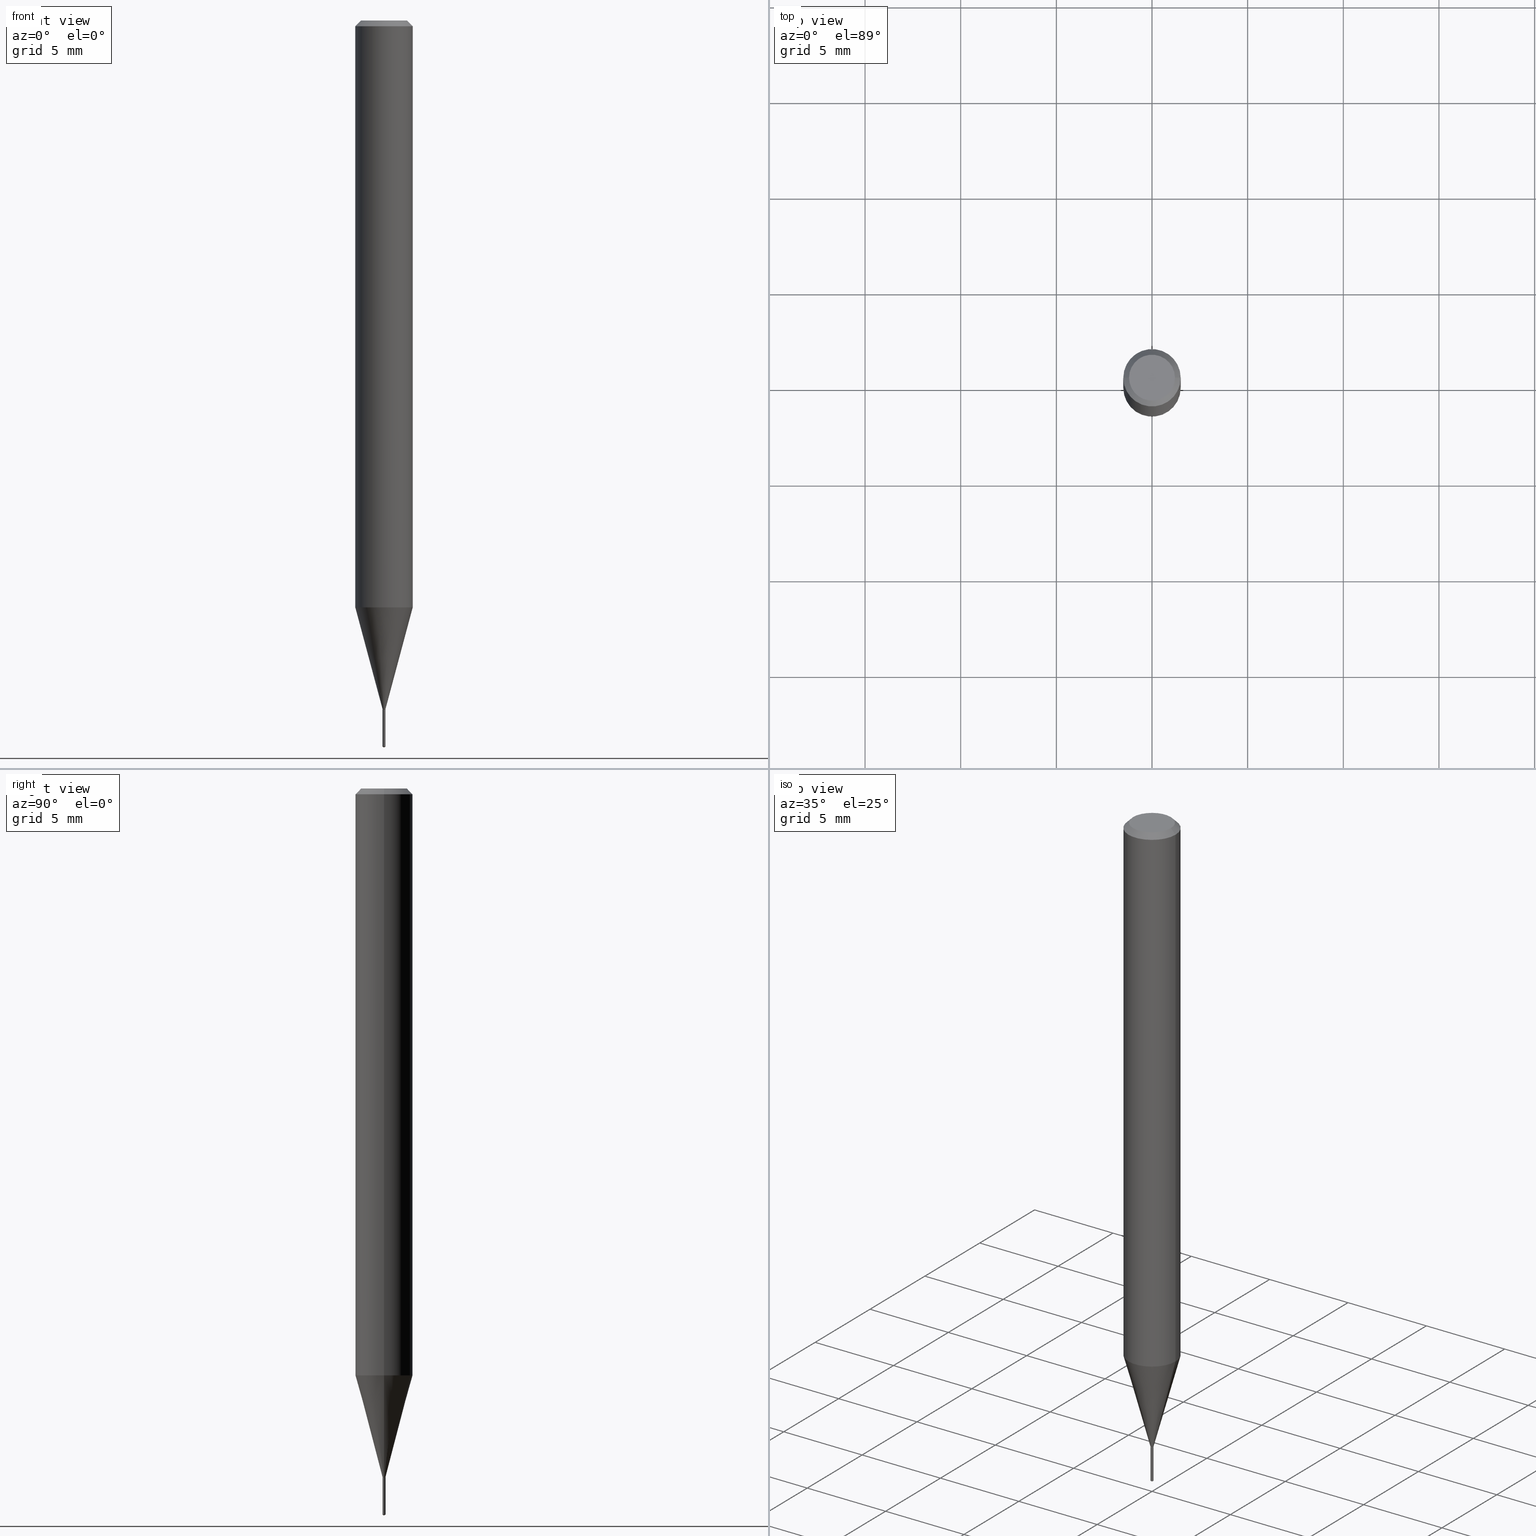
[diagram: canonical four-view strip — front | top / right | iso, engineering-drawing reading convention]
A machine part, canonical four-view strip (front | top / right | iso — engineering-drawing reading convention). The complete STEP part file that produces these views, byte-faithful:
ISO-10303-21;
HEADER;
FILE_DESCRIPTION (( 'STEP AP203' ),
    '1' );
FILE_NAME ('07735.STEP',
    '2024-04-24T01:56:40',
    ( '' ),
    ( '' ),
    'SwSTEP 2.0',
    'SolidWorks 2023',
    '' );
FILE_SCHEMA (( 'CONFIG_CONTROL_DESIGN' ));
ENDSEC;

DATA;
#1 = VERTEX_POINT ( 'NONE', #402 ) ;
#2 = PERSON_AND_ORGANIZATION ( #83, #242 ) ;
#3 = DIRECTION ( 'NONE',  ( -2.445418252275281466E-29, 3.491553734919407825E-15, 1.000000000000000000 ) ) ;
#4 = ORIENTED_EDGE ( 'NONE', *, *, #228, .T. ) ;
#5 =( GEOMETRIC_REPRESENTATION_CONTEXT ( 3 ) GLOBAL_UNCERTAINTY_ASSIGNED_CONTEXT ( ( #267 ) ) GLOBAL_UNIT_ASSIGNED_CONTEXT ( ( #96, #398, #251 ) ) REPRESENTATION_CONTEXT ( 'NONE', 'WORKASPACE' ) );
#6 = CARTESIAN_POINT ( 'NONE',  ( -0.002650000000000000445, -4.929996267178631795E-15, -1.417399999999999993 ) ) ;
#7 = CLOSED_SHELL ( 'NONE', ( #122, #285, #74, #238, #403 ) ) ;
#8 = ORIENTED_EDGE ( 'NONE', *, *, #40, .F. ) ;
#9 = PLANE ( 'NONE',  #342 ) ;
#10 = VERTEX_POINT ( 'NONE', #406 ) ;
#11 = EDGE_CURVE ( 'NONE', #1, #380, #235, .T. ) ;
#12 = FACE_OUTER_BOUND ( 'NONE', #137, .T. ) ;
#13 = AXIS2_PLACEMENT_3D ( 'NONE', #444, #54, #204 ) ;
#14 = DIRECTION ( 'NONE',  ( -2.445468806185136597E-29, 3.491481338843145583E-15, 1.000000000000000000 ) ) ;
#15 = LOCAL_TIME ( 21, 56, 40.00000000000000000, #418 ) ;
#16 = DIRECTION ( 'NONE',  ( -2.445468806185136597E-29, 3.491481338843145583E-15, 1.000000000000000000 ) ) ;
#17 = EDGE_CURVE ( 'NONE', #399, #324, #224, .T. ) ;
#18 = FACE_OUTER_BOUND ( 'NONE', #290, .T. ) ;
#19 = PERSON_AND_ORGANIZATION ( #83, #242 ) ;
#20 = AXIS2_PLACEMENT_3D ( 'NONE', #480, #31, #442 ) ;
#21 = CARTESIAN_POINT ( 'NONE',  ( 3.466207485886812543E-29, -4.948825649676274743E-15, -1.417399999999999993 ) ) ;
#22 = CC_DESIGN_APPROVAL ( #145, ( #159 ) ) ;
#23 = AXIS2_PLACEMENT_3D ( 'NONE', #370, #132, #475 ) ;
#24 = EDGE_LOOP ( 'NONE', ( #266, #307, #252, #336 ) ) ;
#25 = ORIENTED_EDGE ( 'NONE', *, *, #196, .T. ) ;
#26 = CARTESIAN_POINT ( 'NONE',  ( 2.953828850696113745E-29, -4.217284753032831464E-15, -1.207878359856899841 ) ) ;
#27 = ORIENTED_EDGE ( 'NONE', *, *, #332, .F. ) ;
#28 = AXIS2_PLACEMENT_3D ( 'NONE', #373, #42, #109 ) ;
#29 = ORIENTED_EDGE ( 'NONE', *, *, #437, .T. ) ;
#30 = DIRECTION ( 'NONE',  ( 0.2588190451025213501, 1.565188264969621968E-15, 0.9659258262890682012 ) ) ;
#31 = DIRECTION ( 'NONE',  ( -2.445418252275281466E-29, 3.491553734919407825E-15, 1.000000000000000000 ) ) ;
#32 = ORIENTED_EDGE ( 'NONE', *, *, #323, .F. ) ;
#33 = DIRECTION ( 'NONE',  ( -2.445418252275281466E-29, 3.491553734919407825E-15, 1.000000000000000000 ) ) ;
#34 = DIRECTION ( 'NONE',  ( 1.000000000000000000, -6.982962677686166525E-15, 0.000000000000000000 ) ) ;
#35 = ORIENTED_EDGE ( 'NONE', *, *, #167, .T. ) ;
#36 = CIRCLE ( 'NONE', #320, 0.003150000000000000022 ) ;
#37 = APPROVAL_ROLE ( '' ) ;
#38 = CARTESIAN_POINT ( 'NONE',  ( -0.05904999999999999832, 3.711095515056362547E-16, -0.01181000000000007044 ) ) ;
#39 = ORIENTED_EDGE ( 'NONE', *, *, #323, .T. ) ;
#40 = EDGE_CURVE ( 'NONE', #380, #1, #422, .T. ) ;
#41 = DIRECTION ( 'NONE',  ( -2.445468806185136597E-29, 3.491481338843145583E-15, 1.000000000000000000 ) ) ;
#42 = DIRECTION ( 'NONE',  ( -2.445468806185136597E-29, 3.491481338843145583E-15, 1.000000000000000000 ) ) ;
#43 = VERTEX_POINT ( 'NONE', #246 ) ;
#44 = VECTOR ( 'NONE', #30, 39.37007874015747433 ) ;
#45 = CARTESIAN_POINT ( 'NONE',  ( 2.238209617647781659E-17, 0.003149999999995051290, -1.417399999999999993 ) ) ;
#46 = DIRECTION ( 'NONE',  ( 6.090539988449955140E-15, 0.8571673007021387569, 0.5150380749100101907 ) ) ;
#47 = CARTESIAN_POINT ( 'NONE',  ( 3.466207485886812543E-29, -4.948825649676274743E-15, -1.417399999999999993 ) ) ;
#48 = AXIS2_PLACEMENT_3D ( 'NONE', #102, #142, #298 ) ;
#49 = LOCAL_TIME ( 21, 56, 40.00000000000000000, #481 ) ;
#50 = CYLINDRICAL_SURFACE ( 'NONE', #199, 0.05905000000000006771 ) ;
#51 = DIMENSIONAL_EXPONENTS ( 1.000000000000000000, 0.000000000000000000, 0.000000000000000000, 0.000000000000000000, 0.000000000000000000, 0.000000000000000000, 0.000000000000000000 ) ;
#52 = CARTESIAN_POINT ( 'NONE',  ( 2.238209617647969630E-17, 0.003149999999994783275, -1.494207289050063281 ) ) ;
#53 = CALENDAR_DATE ( 2024, 23, 4 ) ;
#54 = DIRECTION ( 'NONE',  ( 2.438088387897960049E-29, -3.491481338843145188E-15, -1.000000000000000000 ) ) ;
#55 = APPROVAL_DATE_TIME ( #203, #311 ) ;
#56 = VECTOR ( 'NONE', #223, 39.37007874015748854 ) ;
#57 = EDGE_LOOP ( 'NONE', ( #331, #364, #314, #404 ) ) ;
#58 = PRODUCT_RELATED_PRODUCT_CATEGORY ( 'detail', '', ( #334 ) ) ;
#59 = COORDINATED_UNIVERSAL_TIME_OFFSET ( 5, 0, .BEHIND. ) ;
#60 = ORIENTED_EDGE ( 'NONE', *, *, #40, .T. ) ;
#61 = DIRECTION ( 'NONE',  ( -2.445468806185136597E-29, 3.491481338843145583E-15, 1.000000000000000000 ) ) ;
#62 = ORIENTED_EDGE ( 'NONE', *, *, #445, .F. ) ;
#63 = DIRECTION ( 'NONE',  ( 1.000000000000000000, 0.000000000000000000, 0.000000000000000000 ) ) ;
#64 = ORIENTED_EDGE ( 'NONE', *, *, #294, .F. ) ;
#65 = AXIS2_PLACEMENT_3D ( 'NONE', #375, #395, #162 ) ;
#66 = LOCAL_TIME ( 21, 56, 40.00000000000000000, #59 ) ;
#67 = EDGE_CURVE ( 'NONE', #372, #10, #212, .T. ) ;
#68 = ORIENTED_EDGE ( 'NONE', *, *, #127, .T. ) ;
#69 = CARTESIAN_POINT ( 'NONE',  ( 3.466207485886812543E-29, -4.948825649676274743E-15, -1.417399999999999993 ) ) ;
#70 = APPROVAL_DATE_TIME ( #297, #145 ) ;
#71 = CARTESIAN_POINT ( 'NONE',  ( 0.05905000000000006771, -4.123439461173745257E-16, 2.879382386107503723E-30 ) ) ;
#72 = ORIENTED_EDGE ( 'NONE', *, *, #144, .F. ) ;
#73 = DIRECTION ( 'NONE',  ( 2.445468806185136597E-29, -3.491481338843145583E-15, -1.000000000000000000 ) ) ;
#74 = ADVANCED_FACE ( 'NONE', ( #397 ), #393, .T. ) ;
#75 = CYLINDRICAL_SURFACE ( 'NONE', #214, 0.003150000000000000022 ) ;
#76 = CARTESIAN_POINT ( 'NONE',  ( 2.953828850696113745E-29, -4.217284753032831464E-15, -1.207878359856899841 ) ) ;
#77 = EDGE_CURVE ( 'NONE', #310, #376, #296, .T. ) ;
#78 = ORIENTED_EDGE ( 'NONE', *, *, #161, .T. ) ;
#79 = CARTESIAN_POINT ( 'NONE',  ( -0.04724000000000000421, 3.504923541997677355E-16, -3.380025165670481712E-19 ) ) ;
#80 = EDGE_LOOP ( 'NONE', ( #207, #113, #35, #151 ) ) ;
#81 = AXIS2_PLACEMENT_3D ( 'NONE', #189, #191, #34 ) ;
#82 = DIRECTION ( 'NONE',  ( -2.445418252275281466E-29, 3.491553734919407825E-15, 1.000000000000000000 ) ) ;
#83 = PERSON ( 'UNSPECIFIED', 'UNSPECIFIED', 'UNSPECIFIED', ('UNSPECIFIED'), ('UNSPECIFIED'), ('UNSPECIFIED') ) ;
#84 = CARTESIAN_POINT ( 'NONE',  ( 0.000000000000000000, 0.000000000000000000, 0.000000000000000000 ) ) ;
#85 = DIRECTION ( 'NONE',  ( 1.000000000000000000, -6.982962677686266711E-15, 4.876176775795936353E-29 ) ) ;
#86 = ADVANCED_FACE ( 'NONE', ( #482 ), #139, .F. ) ;
#87 = AXIS2_PLACEMENT_3D ( 'NONE', #279, #16, #195 ) ;
#88 = DIRECTION ( 'NONE',  ( 1.000000000000000000, -6.982962677686347963E-15, 0.000000000000000000 ) ) ;
#89 = APPROVAL_ROLE ( '' ) ;
#90 = ORIENTED_EDGE ( 'NONE', *, *, #171, .F. ) ;
#91 = LINE ( 'NONE', #147, #430 ) ;
#92 = CC_DESIGN_PERSON_AND_ORGANIZATION_ASSIGNMENT ( #256, #218, ( #276 ) ) ;
#93 = AXIS2_PLACEMENT_3D ( 'NONE', #186, #264, #490 ) ;
#94 = ORIENTED_EDGE ( 'NONE', *, *, #118, .F. ) ;
#95 = AXIS2_PLACEMENT_3D ( 'NONE', #84, #427, #271 ) ;
#96 =( CONVERSION_BASED_UNIT ( 'INCH', #369 ) LENGTH_UNIT ( ) NAMED_UNIT ( #51 ) );
#97 = ORIENTED_EDGE ( 'NONE', *, *, #11, .T. ) ;
#98 = LINE ( 'NONE', #329, #198 ) ;
#99 = DIRECTION ( 'NONE',  ( -2.445418252275281466E-29, 3.491553734919407825E-15, 1.000000000000000000 ) ) ;
#100 = MANIFOLD_SOLID_BREP ( 'Body-Move/Copy2[2]', #114 ) ;
#101 = ADVANCED_FACE ( 'NONE', ( #360 ), #340, .T. ) ;
#102 = CARTESIAN_POINT ( 'NONE',  ( 2.888098660104663766E-31, -4.123439461173779647E-17, -0.01181000000000007044 ) ) ;
#103 = AXIS2_PLACEMENT_3D ( 'NONE', #300, #3, #111 ) ;
#104 = CIRCLE ( 'NONE', #125, 0.003150000000000000022 ) ;
#105 = EDGE_LOOP ( 'NONE', ( #234, #156, #291, #293 ) ) ;
#106 = DIRECTION ( 'NONE',  ( -2.445418252275281466E-29, 3.491553734919408219E-15, 1.000000000000000000 ) ) ;
#107 = VERTEX_POINT ( 'NONE', #471 ) ;
#108 = EDGE_CURVE ( 'NONE', #412, #310, #129, .T. ) ;
#109 = DIRECTION ( 'NONE',  ( 1.000000000000000000, -6.982962677686166525E-15, 0.000000000000000000 ) ) ;
#110 = CALENDAR_DATE ( 2024, 23, 4 ) ;
#111 = DIRECTION ( 'NONE',  ( -6.982962677686266711E-15, -1.000000000000000000, 0.000000000000000000 ) ) ;
#112 = APPROVAL_PERSON_ORGANIZATION ( #432, #175, #382 ) ;
#113 = ORIENTED_EDGE ( 'NONE', *, *, #487, .T. ) ;
#114 = CLOSED_SHELL ( 'NONE', ( #335, #272, #408, #356, #385, #371, #227, #436, #152, #86, #391, #101 ) ) ;
#115 = DIRECTION ( 'NONE',  ( -2.445468806185136877E-29, 3.491481338843145188E-15, 1.000000000000000000 ) ) ;
#116 = ORIENTED_EDGE ( 'NONE', *, *, #196, .F. ) ;
#117 = DIRECTION ( 'NONE',  ( -6.982962677686266711E-15, -1.000000000000000000, 0.000000000000000000 ) ) ;
#118 = EDGE_CURVE ( 'NONE', #310, #351, #91, .T. ) ;
#119 = FACE_OUTER_BOUND ( 'NONE', #174, .T. ) ;
#120 = FACE_OUTER_BOUND ( 'NONE', #105, .T. ) ;
#121 = CARTESIAN_POINT ( 'NONE',  ( -2.199633243467707633E-17, -0.003150000000004948755, -1.417399999999999993 ) ) ;
#122 = ADVANCED_FACE ( 'NONE', ( #451 ), #343, .T. ) ;
#123 = CARTESIAN_POINT ( 'NONE',  ( -2.199633243467520279E-17, -0.003150000000005218504, -1.494207289050063281 ) ) ;
#124 = VECTOR ( 'NONE', #231, 39.37007874015748143 ) ;
#125 = AXIS2_PLACEMENT_3D ( 'NONE', #472, #206, #318 ) ;
#126 = CIRCLE ( 'NONE', #28, 0.002650000000000000445 ) ;
#127 = EDGE_CURVE ( 'NONE', #376, #310, #134, .T. ) ;
#128 = DATE_TIME_ROLE ( 'creation_date' ) ;
#129 = LINE ( 'NONE', #283, #173 ) ;
#130 = DIRECTION ( 'NONE',  ( 0.7071067811866187380, -2.468850131083003717E-15, 0.7071067811864760744 ) ) ;
#131 = PRODUCT_DEFINITION ( 'UNKNOWN', '', #276, #426 ) ;
#132 = DIRECTION ( 'NONE',  ( -2.445468806185136597E-29, 3.491481338843145583E-15, 1.000000000000000000 ) ) ;
#133 = DIRECTION ( 'NONE',  ( 1.000000000000000000, -6.982962677686263555E-15, 0.000000000000000000 ) ) ;
#134 = CIRCLE ( 'NONE', #103, 0.003150000000000000022 ) ;
#135 = CARTESIAN_POINT ( 'NONE',  ( 8.265746106709734507E-48, -1.180129479067563789E-33, -3.380025165646692144E-19 ) ) ;
#136 = APPROVAL_PERSON_ORGANIZATION ( #19, #311, #89 ) ;
#137 = EDGE_LOOP ( 'NONE', ( #489, #39, #209, #303 ) ) ;
#138 = PERSON_AND_ORGANIZATION_ROLE ( 'creator' ) ;
#139 = PLANE ( 'NONE',  #13 ) ;
#140 = EDGE_LOOP ( 'NONE', ( #116, #72 ) ) ;
#141 = DATE_TIME_ROLE ( 'classification_date' ) ;
#142 = DIRECTION ( 'NONE',  ( 2.445468806185136597E-29, -3.491481338843145583E-15, -1.000000000000000000 ) ) ;
#143 = AXIS2_PLACEMENT_3D ( 'NONE', #216, #99, #177 ) ;
#144 = EDGE_CURVE ( 'NONE', #188, #107, #126, .T. ) ;
#145 = APPROVAL ( #292, 'UNSPECIFIED' ) ;
#146 = DIRECTION ( 'NONE',  ( 1.000000000000000000, -6.982962677686347963E-15, 0.000000000000000000 ) ) ;
#147 = CARTESIAN_POINT ( 'NONE',  ( -2.199633243467707633E-17, -0.003150000000004948755, -1.417399999999999993 ) ) ;
#148 = VERTEX_POINT ( 'NONE', #348 ) ;
#149 = DIRECTION ( 'NONE',  ( 1.000000000000000000, -6.982962677686263555E-15, 0.000000000000000000 ) ) ;
#150 = CIRCLE ( 'NONE', #275, 0.003150000000000000022 ) ;
#151 = ORIENTED_EDGE ( 'NONE', *, *, #437, .F. ) ;
#152 = ADVANCED_FACE ( 'NONE', ( #219 ), #182, .T. ) ;
#153 = DIRECTION ( 'NONE',  ( -2.445468806185136877E-29, 3.491481338843145188E-15, 1.000000000000000000 ) ) ;
#154 = EDGE_LOOP ( 'NONE', ( #441, #439, #424, #32 ) ) ;
#155 = CARTESIAN_POINT ( 'NONE',  ( 3.466207485886812543E-29, -4.948825649676274743E-15, -1.417399999999999993 ) ) ;
#156 = ORIENTED_EDGE ( 'NONE', *, *, #67, .T. ) ;
#157 = CARTESIAN_POINT ( 'NONE',  ( 0.000000000000000000, 0.000000000000000000, 0.000000000000000000 ) ) ;
#158 = AXIS2_PLACEMENT_3D ( 'NONE', #429, #392, #357 ) ;
#159 = SECURITY_CLASSIFICATION ( '', '', #304 ) ;
#160 = CARTESIAN_POINT ( 'NONE',  ( 3.658734814114202684E-29, -5.223508314415937502E-15, -1.496099999999999985 ) ) ;
#161 = EDGE_CURVE ( 'NONE', #473, #10, #327, .T. ) ;
#162 = DIRECTION ( 'NONE',  ( -6.982962677686263555E-15, -1.000000000000000000, 3.468864327941218716E-15 ) ) ;
#163 = FACE_OUTER_BOUND ( 'NONE', #24, .T. ) ;
#164 = VECTOR ( 'NONE', #115, 39.37007874015748143 ) ;
#165 = PERSON_AND_ORGANIZATION_ROLE ( 'creator' ) ;
#166 = DIRECTION ( 'NONE',  ( -2.445468806185136597E-29, 3.491481338843145583E-15, 1.000000000000000000 ) ) ;
#167 = EDGE_CURVE ( 'NONE', #473, #399, #258, .T. ) ;
#168 = APPLICATION_PROTOCOL_DEFINITION ( 'international standard', 'config_control_design', 1994, #337 ) ;
#169 = EDGE_LOOP ( 'NONE', ( #60, #97 ) ) ;
#170 = EDGE_LOOP ( 'NONE', ( #299, #447 ) ) ;
#171 = EDGE_CURVE ( 'NONE', #1, #399, #229, .T. ) ;
#172 = ORIENTED_EDGE ( 'NONE', *, *, #476, .F. ) ;
#173 = VECTOR ( 'NONE', #433, 39.37007874015748854 ) ;
#174 = EDGE_LOOP ( 'NONE', ( #78, #434, #184, #253 ) ) ;
#175 = APPROVAL ( #415, 'UNSPECIFIED' ) ;
#176 = DATE_AND_TIME ( #220, #15 ) ;
#177 = DIRECTION ( 'NONE',  ( -6.982962677686266711E-15, -1.000000000000000000, 0.000000000000000000 ) ) ;
#178 = PERSON_AND_ORGANIZATION ( #83, #242 ) ;
#179 = DIRECTION ( 'NONE',  ( -6.982962677686266711E-15, -1.000000000000000000, 0.000000000000000000 ) ) ;
#180 = CC_DESIGN_PERSON_AND_ORGANIZATION_ASSIGNMENT ( #215, #281, ( #334 ) ) ;
#181 = CARTESIAN_POINT ( 'NONE',  ( 2.888098660104663766E-31, -4.123439461173779647E-17, -0.01181000000000007044 ) ) ;
#182 = CONICAL_SURFACE ( 'NONE', #192, 0.05904999999999999832, 0.7853981633974452814 ) ;
#183 = CC_DESIGN_APPROVAL ( #175, ( #276 ) ) ;
#184 = ORIENTED_EDGE ( 'NONE', *, *, #17, .F. ) ;
#185 = DATE_AND_TIME ( #110, #233 ) ;
#186 = CARTESIAN_POINT ( 'NONE',  ( 3.464006563961245725E-29, -4.945683316471316037E-15, -1.416500000000000092 ) ) ;
#187 = APPLICATION_CONTEXT ( 'configuration controlled 3d designs of mechanical parts and assemblies' ) ;
#188 = VERTEX_POINT ( 'NONE', #407 ) ;
#189 = CARTESIAN_POINT ( 'NONE',  ( 3.466207485886812543E-29, -4.948825649676274743E-15, -1.417399999999999993 ) ) ;
#190 = ORIENTED_EDGE ( 'NONE', *, *, #302, .F. ) ;
#191 = DIRECTION ( 'NONE',  ( -2.445468806185136597E-29, 3.491481338843145583E-15, 1.000000000000000000 ) ) ;
#192 = AXIS2_PLACEMENT_3D ( 'NONE', #181, #73, #450 ) ;
#193 = CARTESIAN_POINT ( 'NONE',  ( 3.464006563961245725E-29, -4.945683316471316037E-15, -1.416500000000000092 ) ) ;
#194 = ORIENTED_EDGE ( 'NONE', *, *, #210, .T. ) ;
#195 = DIRECTION ( 'NONE',  ( 1.000000000000000000, -6.982962677686166525E-15, 0.000000000000000000 ) ) ;
#196 = EDGE_CURVE ( 'NONE', #107, #188, #453, .T. ) ;
#197 = FACE_OUTER_BOUND ( 'NONE', #170, .T. ) ;
#198 = VECTOR ( 'NONE', #130, 39.37007874015748854 ) ;
#199 = AXIS2_PLACEMENT_3D ( 'NONE', #353, #428, #85 ) ;
#200 = LINE ( 'NONE', #274, #44 ) ;
#201 = FACE_OUTER_BOUND ( 'NONE', #140, .T. ) ;
#202 = EDGE_CURVE ( 'NONE', #351, #443, #150, .T. ) ;
#203 = DATE_AND_TIME ( #53, #225 ) ;
#204 = DIRECTION ( 'NONE',  ( -1.000000000000000000, 6.982962677686265922E-15, -4.876176775795935793E-29 ) ) ;
#205 = CONICAL_SURFACE ( 'NONE', #48, 0.05904999999999999832, 0.7853981633974452814 ) ;
#206 = DIRECTION ( 'NONE',  ( -2.445468806185136597E-29, 3.491481338843145583E-15, 1.000000000000000000 ) ) ;
#207 = ORIENTED_EDGE ( 'NONE', *, *, #261, .F. ) ;
#208 = DIRECTION ( 'NONE',  ( -2.445468806185136597E-29, 3.491481338843145583E-15, 1.000000000000000000 ) ) ;
#209 = ORIENTED_EDGE ( 'NONE', *, *, #317, .T. ) ;
#210 = EDGE_CURVE ( 'NONE', #188, #43, #488, .T. ) ;
#211 = FACE_OUTER_BOUND ( 'NONE', #80, .T. ) ;
#212 = LINE ( 'NONE', #366, #319 ) ;
#213 = ORIENTED_EDGE ( 'NONE', *, *, #118, .T. ) ;
#214 = AXIS2_PLACEMENT_3D ( 'NONE', #226, #381, #484 ) ;
#215 = PERSON_AND_ORGANIZATION ( #83, #242 ) ;
#216 = CARTESIAN_POINT ( 'NONE',  ( 3.654033432437620500E-29, -5.217002426628057178E-15, -1.494207289050063281 ) ) ;
#217 = ORIENTED_EDGE ( 'NONE', *, *, #77, .F. ) ;
#218 = PERSON_AND_ORGANIZATION_ROLE ( 'design_supplier' ) ;
#219 = FACE_OUTER_BOUND ( 'NONE', #452, .T. ) ;
#220 = CALENDAR_DATE ( 2024, 23, 4 ) ;
#221 = FACE_OUTER_BOUND ( 'NONE', #384, .T. ) ;
#222 = CC_DESIGN_DATE_AND_TIME_ASSIGNMENT ( #176, #141, ( #159 ) ) ;
#223 = DIRECTION ( 'NONE',  ( -0.7071067811866187380, 7.493145998870611329E-15, 0.7071067811864760744 ) ) ;
#224 = CIRCLE ( 'NONE', #461, 0.05904999999999999832 ) ;
#225 = LOCAL_TIME ( 21, 56, 40.00000000000000000, #245 ) ;
#226 = CARTESIAN_POINT ( 'NONE',  ( 3.466207485886812543E-29, -4.948825649676274743E-15, -1.417399999999999993 ) ) ;
#227 = ADVANCED_FACE ( 'NONE', ( #260 ), #349, .T. ) ;
#228 = EDGE_CURVE ( 'NONE', #380, #324, #339, .T. ) ;
#229 = LINE ( 'NONE', #383, #280 ) ;
#230 = ORIENTED_EDGE ( 'NONE', *, *, #17, .T. ) ;
#231 = DIRECTION ( 'NONE',  ( -2.445468806185136877E-29, 3.491481338843145188E-15, 1.000000000000000000 ) ) ;
#232 = AXIS2_PLACEMENT_3D ( 'NONE', #135, #61, #250 ) ;
#233 = LOCAL_TIME ( 21, 56, 40.00000000000000000, #259 ) ;
#234 = ORIENTED_EDGE ( 'NONE', *, *, #236, .T. ) ;
#235 = CIRCLE ( 'NONE', #23, 0.04724000000000000421 ) ;
#236 = EDGE_CURVE ( 'NONE', #148, #372, #248, .T. ) ;
#237 = CARTESIAN_POINT ( 'NONE',  ( -0.05904999999999999832, -1.709684088355943920E-15, -0.01181000000000007044 ) ) ;
#238 = ADVANCED_FACE ( 'NONE', ( #346 ), #75, .T. ) ;
#239 = CARTESIAN_POINT ( 'NONE',  ( -0.003150000000000000022, -4.923999516562641581E-15, -1.416500000000000092 ) ) ;
#240 = CARTESIAN_POINT ( 'NONE',  ( 3.658590247229048218E-29, -5.223713542812925726E-15, -1.496099999999999985 ) ) ;
#241 = AXIS2_PLACEMENT_3D ( 'NONE', #358, #82, #117 ) ;
#242 = ORGANIZATION ( 'UNSPECIFIED', 'UNSPECIFIED', '' ) ;
#243 = CYLINDRICAL_SURFACE ( 'NONE', #95, 0.003150000000000000022 ) ;
#244 = EDGE_CURVE ( 'NONE', #43, #372, #306, .T. ) ;
#245 = COORDINATED_UNIVERSAL_TIME_OFFSET ( 5, 0, .BEHIND. ) ;
#246 = CARTESIAN_POINT ( 'NONE',  ( -0.003150000000000000022, -4.923999516562641581E-15, -1.416900000000000048 ) ) ;
#247 = ORIENTED_EDGE ( 'NONE', *, *, #127, .F. ) ;
#248 = CIRCLE ( 'NONE', #93, 0.003150000000000000022 ) ;
#249 = APPLICATION_PROTOCOL_DEFINITION ( 'international standard', 'config_control_design', 1994, #187 ) ;
#250 = DIRECTION ( 'NONE',  ( 1.000000000000000000, -6.982962677686266711E-15, 4.876185090822587894E-29 ) ) ;
#251 =( NAMED_UNIT ( * ) SI_UNIT ( $, .STERADIAN. ) SOLID_ANGLE_UNIT ( ) );
#252 = ORIENTED_EDGE ( 'NONE', *, *, #236, .F. ) ;
#253 = ORIENTED_EDGE ( 'NONE', *, *, #167, .F. ) ;
#254 = CARTESIAN_POINT ( 'NONE',  ( 0.000000000000000000, 0.000000000000000000, 0.000000000000000000 ) ) ;
#255 = DIRECTION ( 'NONE',  ( 1.000000000000000000, -6.982962677686266711E-15, 0.000000000000000000 ) ) ;
#256 = PERSON_AND_ORGANIZATION ( #83, #242 ) ;
#257 = AXIS2_PLACEMENT_3D ( 'NONE', #316, #14, #88 ) ;
#258 = LINE ( 'NONE', #71, #467 ) ;
#259 = COORDINATED_UNIVERSAL_TIME_OFFSET ( 5, 0, .BEHIND. ) ;
#260 = FACE_OUTER_BOUND ( 'NONE', #57, .T. ) ;
#261 = EDGE_CURVE ( 'NONE', #10, #324, #269, .T. ) ;
#262 = DIRECTION ( 'NONE',  ( 0.7071067811865453523, -7.319954787623248157E-15, -0.7071067811865496822 ) ) ;
#263 = VECTOR ( 'NONE', #153, 39.37007874015748143 ) ;
#264 = DIRECTION ( 'NONE',  ( -2.445468806185136597E-29, 3.491481338843145583E-15, 1.000000000000000000 ) ) ;
#265 = AXIS2_PLACEMENT_3D ( 'NONE', #26, #396, #133 ) ;
#266 = ORIENTED_EDGE ( 'NONE', *, *, #445, .T. ) ;
#267 = UNCERTAINTY_MEASURE_WITH_UNIT (LENGTH_MEASURE( 1.000000000000000082E-05 ), #96, 'distance_accuracy_value', 'NONE');
#268 = MANIFOLD_SOLID_BREP ( 'Body-Move/Copy2[1]', #7 ) ;
#269 = LINE ( 'NONE', #419, #263 ) ;
#270 = ORIENTED_EDGE ( 'NONE', *, *, #171, .T. ) ;
#271 = DIRECTION ( 'NONE',  ( 1.000000000000000000, -6.982962677686267499E-15, 4.876176775795936353E-29 ) ) ;
#272 = ADVANCED_FACE ( 'NONE', ( #308 ), #205, .T. ) ;
#273 = EDGE_LOOP ( 'NONE', ( #326, #270, #230, #288 ) ) ;
#274 = CARTESIAN_POINT ( 'NONE',  ( 0.003150000000000000022, -4.967679648906027771E-15, -1.416500000000000092 ) ) ;
#275 = AXIS2_PLACEMENT_3D ( 'NONE', #69, #33, #179 ) ;
#276 = PRODUCT_DEFINITION_FORMATION_WITH_SPECIFIED_SOURCE ( 'ANY', '', #334, .NOT_KNOWN. ) ;
#277 = LINE ( 'NONE', #45, #485 ) ;
#278 = CARTESIAN_POINT ( 'NONE',  ( 0.003150000000000000022, -2.199633243471174307E-17, 1.535995684375719974E-31 ) ) ;
#279 = CARTESIAN_POINT ( 'NONE',  ( 3.466207485886812543E-29, -4.948825649676274743E-15, -1.417399999999999993 ) ) ;
#280 = VECTOR ( 'NONE', #262, 39.37007874015748143 ) ;
#281 = PERSON_AND_ORGANIZATION_ROLE ( 'design_owner' ) ;
#282 = MECHANICAL_CONTEXT ( 'NONE', #187, 'mechanical' ) ;
#283 = CARTESIAN_POINT ( 'NONE',  ( 3.658590247229048778E-29, -5.223713542812924937E-15, -1.496099999999999985 ) ) ;
#284 = CARTESIAN_POINT ( 'NONE',  ( 2.888098660104663766E-31, -4.123439461173779647E-17, -0.01181000000000007044 ) ) ;
#285 = ADVANCED_FACE ( 'NONE', ( #221 ), #367, .T. ) ;
#286 = AXIS2_PLACEMENT_3D ( 'NONE', #301, #414, #417 ) ;
#287 =( LENGTH_UNIT ( ) NAMED_UNIT ( * ) SI_UNIT ( $, .METRE. ) );
#288 = ORIENTED_EDGE ( 'NONE', *, *, #228, .F. ) ;
#289 = EDGE_LOOP ( 'NONE', ( #64, #460, #247 ) ) ;
#290 = EDGE_LOOP ( 'NONE', ( #25, #194, #62, #172 ) ) ;
#291 = ORIENTED_EDGE ( 'NONE', *, *, #161, .F. ) ;
#292 = APPROVAL_STATUS ( 'not_yet_approved' ) ;
#293 = ORIENTED_EDGE ( 'NONE', *, *, #425, .F. ) ;
#294 = EDGE_CURVE ( 'NONE', #412, #376, #465, .T. ) ;
#295 = VERTEX_POINT ( 'NONE', #388 ) ;
#296 = CIRCLE ( 'NONE', #143, 0.003150000000000000022 ) ;
#297 = DATE_AND_TIME ( #409, #49 ) ;
#298 = DIRECTION ( 'NONE',  ( -1.000000000000000000, 6.982962677686266711E-15, 0.000000000000000000 ) ) ;
#299 = ORIENTED_EDGE ( 'NONE', *, *, #202, .T. ) ;
#300 = CARTESIAN_POINT ( 'NONE',  ( 3.654033432437620500E-29, -5.217002426628057178E-15, -1.494207289050063281 ) ) ;
#301 = CARTESIAN_POINT ( 'NONE',  ( 3.466207485886812543E-29, -4.948825649676274743E-15, -1.417399999999999993 ) ) ;
#302 = EDGE_CURVE ( 'NONE', #376, #443, #277, .T. ) ;
#303 = ORIENTED_EDGE ( 'NONE', *, *, #390, .F. ) ;
#304 = SECURITY_CLASSIFICATION_LEVEL ( 'unclassified' ) ;
#305 = AXIS2_PLACEMENT_3D ( 'NONE', #76, #41, #149 ) ;
#306 = LINE ( 'NONE', #456, #164 ) ;
#307 = ORIENTED_EDGE ( 'NONE', *, *, #244, .T. ) ;
#308 = FACE_OUTER_BOUND ( 'NONE', #273, .T. ) ;
#309 = PLANE ( 'NONE',  #416 ) ;
#310 = VERTEX_POINT ( 'NONE', #123 ) ;
#311 = APPROVAL ( #431, 'UNSPECIFIED' ) ;
#312 = DIRECTION ( 'NONE',  ( 1.000000000000000000, -6.982962677686267499E-15, 4.876176775795936353E-29 ) ) ;
#313 = AXIS2_PLACEMENT_3D ( 'NONE', #254, #405, #63 ) ;
#314 = ORIENTED_EDGE ( 'NONE', *, *, #425, .T. ) ;
#315 = DIRECTION ( 'NONE',  ( -2.445468806185136597E-29, 3.491481338843145583E-15, 1.000000000000000000 ) ) ;
#316 = CARTESIAN_POINT ( 'NONE',  ( 3.464006563961245725E-29, -4.945683316471316037E-15, -1.416500000000000092 ) ) ;
#317 = EDGE_CURVE ( 'NONE', #295, #148, #423, .T. ) ;
#318 = DIRECTION ( 'NONE',  ( 1.000000000000000000, -6.982962677686347963E-15, 0.000000000000000000 ) ) ;
#319 = VECTOR ( 'NONE', #330, 39.37007874015747433 ) ;
#320 = AXIS2_PLACEMENT_3D ( 'NONE', #193, #315, #462 ) ;
#321 = CALENDAR_DATE ( 2024, 23, 4 ) ;
#322 = DIRECTION ( 'NONE',  ( 1.000000000000000000, -6.982962677686166525E-15, 0.000000000000000000 ) ) ;
#323 = EDGE_CURVE ( 'NONE', #43, #295, #378, .T. ) ;
#324 = VERTEX_POINT ( 'NONE', #237 ) ;
#325 = DIRECTION ( 'NONE',  ( 1.000000000000000000, -6.982962677686266711E-15, 0.000000000000000000 ) ) ;
#326 = ORIENTED_EDGE ( 'NONE', *, *, #11, .F. ) ;
#327 = CIRCLE ( 'NONE', #305, 0.05905000000000014404 ) ;
#328 = AXIS2_PLACEMENT_3D ( 'NONE', #474, #208, #325 ) ;
#329 = CARTESIAN_POINT ( 'NONE',  ( 0.002650000000000000445, -4.967330500772143470E-15, -1.417399999999999993 ) ) ;
#330 = DIRECTION ( 'NONE',  ( -0.2588190451025213501, 5.211531920934551042E-15, 0.9659258262890682012 ) ) ;
#331 = ORIENTED_EDGE ( 'NONE', *, *, #67, .F. ) ;
#332 = EDGE_CURVE ( 'NONE', #443, #351, #435, .T. ) ;
#333 = ORIENTED_EDGE ( 'NONE', *, *, #108, .F. ) ;
#334 = PRODUCT ( '07735', '07735', '', ( #282 ) ) ;
#335 = ADVANCED_FACE ( 'NONE', ( #18 ), #463, .T. ) ;
#336 = ORIENTED_EDGE ( 'NONE', *, *, #317, .F. ) ;
#337 = APPLICATION_CONTEXT ( 'configuration controlled 3d designs of mechanical parts and assemblies' ) ;
#338 = ADVANCED_BREP_SHAPE_REPRESENTATION ( '07735', ( #268, #100, #313 ), #5 ) ;
#339 = LINE ( 'NONE', #38, #446 ) ;
#340 = CONICAL_SURFACE ( 'NONE', #354, 0.002650000000000000445, 0.7853981633975491983 ) ;
#341 = APPROVAL_DATE_TIME ( #185, #175 ) ;
#342 = AXIS2_PLACEMENT_3D ( 'NONE', #155, #459, #464 ) ;
#343 = CYLINDRICAL_SURFACE ( 'NONE', #286, 0.003150000000000000022 ) ;
#344 = CARTESIAN_POINT ( 'NONE',  ( 3.464006563961245725E-29, -4.945683316471316037E-15, -1.416500000000000092 ) ) ;
#345 = ORIENTED_EDGE ( 'NONE', *, *, #302, .T. ) ;
#346 = FACE_OUTER_BOUND ( 'NONE', #478, .T. ) ;
#347 = VECTOR ( 'NONE', #46, 39.37007874015748854 ) ;
#348 = CARTESIAN_POINT ( 'NONE',  ( 0.003150000000000000022, -4.967679648906027771E-15, -1.416500000000000092 ) ) ;
#349 = CONICAL_SURFACE ( 'NONE', #469, 0.003150000000000000022, 0.2617993877991500740 ) ;
#350 = CARTESIAN_POINT ( 'NONE',  ( 0.05904999999999999832, -4.535783407291118600E-16, -0.01181000000000007044 ) ) ;
#351 = VERTEX_POINT ( 'NONE', #121 ) ;
#352 = DIRECTION ( 'NONE',  ( -2.445418252275281466E-29, 3.491553734919408219E-15, 1.000000000000000000 ) ) ;
#353 = CARTESIAN_POINT ( 'NONE',  ( 0.000000000000000000, 0.000000000000000000, 0.000000000000000000 ) ) ;
#354 = AXIS2_PLACEMENT_3D ( 'NONE', #21, #166, #322 ) ;
#355 = APPROVAL_PERSON_ORGANIZATION ( #413, #145, #37 ) ;
#356 = ADVANCED_FACE ( 'NONE', ( #120 ), #448, .T. ) ;
#357 = DIRECTION ( 'NONE',  ( 1.000000000000000000, -6.982962677686347963E-15, 0.000000000000000000 ) ) ;
#358 = CARTESIAN_POINT ( 'NONE',  ( 3.466207485886812543E-29, -4.948825649676274743E-15, -1.417399999999999993 ) ) ;
#359 = PERSON_AND_ORGANIZATION ( #83, #242 ) ;
#360 = FACE_OUTER_BOUND ( 'NONE', #154, .T. ) ;
#361 = CARTESIAN_POINT ( 'NONE',  ( 2.238209617647970862E-17, 0.003149999999995051290, -1.417399999999999993 ) ) ;
#362 = DIRECTION ( 'NONE',  ( -2.445468806185136597E-29, 3.491481338843145583E-15, 1.000000000000000000 ) ) ;
#363 = CARTESIAN_POINT ( 'NONE',  ( 0.000000000000000000, 0.000000000000000000, 0.000000000000000000 ) ) ;
#364 = ORIENTED_EDGE ( 'NONE', *, *, #390, .T. ) ;
#365 = CYLINDRICAL_SURFACE ( 'NONE', #454, 0.05905000000000006771 ) ;
#366 = CARTESIAN_POINT ( 'NONE',  ( -0.003150000000000000022, -4.923301220294872979E-15, -1.416500000000000092 ) ) ;
#367 = CONICAL_SURFACE ( 'NONE', #65, 65.52281426577552281, 1.029744258676702273 ) ;
#368 = ORIENTED_EDGE ( 'NONE', *, *, #202, .F. ) ;
#369 = LENGTH_MEASURE_WITH_UNIT ( LENGTH_MEASURE( 0.02539999999999999897 ), #287 );
#370 = CARTESIAN_POINT ( 'NONE',  ( 8.265746106709734507E-48, -1.180129479067563789E-33, -3.380025165646692144E-19 ) ) ;
#371 = ADVANCED_FACE ( 'NONE', ( #12 ), #243, .T. ) ;
#372 = VERTEX_POINT ( 'NONE', #239 ) ;
#373 = CARTESIAN_POINT ( 'NONE',  ( 3.466207485886812543E-29, -4.948825649676274743E-15, -1.417399999999999993 ) ) ;
#374 = SHAPE_DEFINITION_REPRESENTATION ( #401, #338 ) ;
#375 = CARTESIAN_POINT ( 'NONE',  ( -9.261764724235524773E-28, 1.322391345406536008E-13, 37.87397874015748300 ) ) ;
#376 = VERTEX_POINT ( 'NONE', #52 ) ;
#377 = CC_DESIGN_PERSON_AND_ORGANIZATION_ASSIGNMENT ( #2, #138, ( #276 ) ) ;
#378 = CIRCLE ( 'NONE', #158, 0.003150000000000000022 ) ;
#379 = DIRECTION ( 'NONE',  ( -2.445468806185136597E-29, 3.491481338843145583E-15, 1.000000000000000000 ) ) ;
#380 = VERTEX_POINT ( 'NONE', #79 ) ;
#381 = DIRECTION ( 'NONE',  ( -2.445418252275281466E-29, 3.491553734919407825E-15, 1.000000000000000000 ) ) ;
#382 = APPROVAL_ROLE ( '' ) ;
#383 = CARTESIAN_POINT ( 'NONE',  ( 0.05904999999999999832, -4.463468013801466955E-16, -0.01181000000000007044 ) ) ;
#384 = EDGE_LOOP ( 'NONE', ( #333, #400, #217 ) ) ;
#385 = ADVANCED_FACE ( 'NONE', ( #163 ), #389, .T. ) ;
#386 = DIRECTION ( 'NONE',  ( -2.438088387897960049E-29, 3.491481338843145188E-15, 1.000000000000000000 ) ) ;
#387 = AXIS2_PLACEMENT_3D ( 'NONE', #157, #421, #312 ) ;
#388 = CARTESIAN_POINT ( 'NONE',  ( 0.003150000000000000022, -4.969076241441565762E-15, -1.416900000000000048 ) ) ;
#389 = CYLINDRICAL_SURFACE ( 'NONE', #387, 0.003150000000000000022 ) ;
#390 = EDGE_CURVE ( 'NONE', #372, #148, #36, .T. ) ;
#391 = ADVANCED_FACE ( 'NONE', ( #201 ), #309, .F. ) ;
#392 = DIRECTION ( 'NONE',  ( -2.445468806185136597E-29, 3.491481338843145583E-15, 1.000000000000000000 ) ) ;
#393 = CONICAL_SURFACE ( 'NONE', #20, 65.52281426577552281, 1.029744258676702273 ) ;
#394 = CC_DESIGN_SECURITY_CLASSIFICATION ( #159, ( #276 ) ) ;
#395 = DIRECTION ( 'NONE',  ( -2.445418252275281466E-29, 3.491553734919407825E-15, 1.000000000000000000 ) ) ;
#396 = DIRECTION ( 'NONE',  ( -2.445468806185136597E-29, 3.491481338843145583E-15, 1.000000000000000000 ) ) ;
#397 = FACE_OUTER_BOUND ( 'NONE', #289, .T. ) ;
#398 =( NAMED_UNIT ( * ) PLANE_ANGLE_UNIT ( ) SI_UNIT ( $, .RADIAN. ) );
#399 = VERTEX_POINT ( 'NONE', #350 ) ;
#400 = ORIENTED_EDGE ( 'NONE', *, *, #294, .T. ) ;
#401 = PRODUCT_DEFINITION_SHAPE ( 'NONE', 'NONE',  #131 ) ;
#402 = CARTESIAN_POINT ( 'NONE',  ( 0.04724000000000000421, -3.852183633974369345E-16, -3.380025165621689721E-19 ) ) ;
#403 = ADVANCED_FACE ( 'NONE', ( #197 ), #9, .F. ) ;
#404 = ORIENTED_EDGE ( 'NONE', *, *, #487, .F. ) ;
#405 = DIRECTION ( 'NONE',  ( 0.000000000000000000, 0.000000000000000000, 1.000000000000000000 ) ) ;
#406 = CARTESIAN_POINT ( 'NONE',  ( -0.05905000000000014404, -3.797709267566491971E-15, -1.207878359856899841 ) ) ;
#407 = CARTESIAN_POINT ( 'NONE',  ( -0.002650000000000000445, -4.927347040004520594E-15, -1.417399999999999993 ) ) ;
#408 = ADVANCED_FACE ( 'NONE', ( #119 ), #50, .T. ) ;
#409 = CALENDAR_DATE ( 2024, 23, 4 ) ;
#410 = DIRECTION ( 'NONE',  ( -0.7071067811865453523, 2.468850131082234184E-15, -0.7071067811865496822 ) ) ;
#411 = CC_DESIGN_DATE_AND_TIME_ASSIGNMENT ( #470, #128, ( #131 ) ) ;
#412 = VERTEX_POINT ( 'NONE', #240 ) ;
#413 = PERSON_AND_ORGANIZATION ( #83, #242 ) ;
#414 = DIRECTION ( 'NONE',  ( -2.445418252275281466E-29, 3.491553734919407825E-15, 1.000000000000000000 ) ) ;
#415 = APPROVAL_STATUS ( 'not_yet_approved' ) ;
#416 = AXIS2_PLACEMENT_3D ( 'NONE', #47, #386, #458 ) ;
#417 = DIRECTION ( 'NONE',  ( -6.982962677686266711E-15, -1.000000000000000000, 0.000000000000000000 ) ) ;
#418 = COORDINATED_UNIVERSAL_TIME_OFFSET ( 5, 0, .BEHIND. ) ;
#419 = CARTESIAN_POINT ( 'NONE',  ( -0.05905000000000006771, 4.195754854663396409E-16, -2.904631170795525045E-30 ) ) ;
#420 = ORIENTED_EDGE ( 'NONE', *, *, #77, .T. ) ;
#421 = DIRECTION ( 'NONE',  ( -2.445468806185136597E-29, 3.491481338843145583E-15, 1.000000000000000000 ) ) ;
#422 = CIRCLE ( 'NONE', #232, 0.04724000000000000421 ) ;
#423 = LINE ( 'NONE', #278, #124 ) ;
#424 = ORIENTED_EDGE ( 'NONE', *, *, #476, .T. ) ;
#425 = EDGE_CURVE ( 'NONE', #148, #473, #200, .T. ) ;
#426 = DESIGN_CONTEXT ( 'detailed design', #337, 'design' ) ;
#427 = DIRECTION ( 'NONE',  ( -2.445468806185136597E-29, 3.491481338843145583E-15, 1.000000000000000000 ) ) ;
#428 = DIRECTION ( 'NONE',  ( -2.445468806185136597E-29, 3.491481338843145583E-15, 1.000000000000000000 ) ) ;
#429 = CARTESIAN_POINT ( 'NONE',  ( 3.464984751483720302E-29, -4.947079909006853240E-15, -1.416900000000000048 ) ) ;
#430 = VECTOR ( 'NONE', #106, 39.37007874015748143 ) ;
#431 = APPROVAL_STATUS ( 'not_yet_approved' ) ;
#432 = PERSON_AND_ORGANIZATION ( #83, #242 ) ;
#433 = DIRECTION ( 'NONE',  ( -5.985567269336115618E-15, -0.8571673007021350932, 0.5150380749100161859 ) ) ;
#434 = ORIENTED_EDGE ( 'NONE', *, *, #261, .T. ) ;
#435 = CIRCLE ( 'NONE', #241, 0.003150000000000000022 ) ;
#436 = ADVANCED_FACE ( 'NONE', ( #211 ), #365, .T. ) ;
#437 = EDGE_CURVE ( 'NONE', #324, #399, #486, .T. ) ;
#438 = CARTESIAN_POINT ( 'NONE',  ( 0.05905000000000014404, -4.629628699150206384E-15, -1.207878359856899841 ) ) ;
#439 = ORIENTED_EDGE ( 'NONE', *, *, #144, .T. ) ;
#440 = CC_DESIGN_PERSON_AND_ORGANIZATION_ASSIGNMENT ( #359, #165, ( #131 ) ) ;
#441 = ORIENTED_EDGE ( 'NONE', *, *, #210, .F. ) ;
#442 = DIRECTION ( 'NONE',  ( -6.982962677686263555E-15, -1.000000000000000000, 3.468864327941218716E-15 ) ) ;
#443 = VERTEX_POINT ( 'NONE', #361 ) ;
#444 = CARTESIAN_POINT ( 'NONE',  ( 4.132873053354867254E-48, -5.900647395337818946E-34, -1.690012582823346072E-19 ) ) ;
#445 = EDGE_CURVE ( 'NONE', #295, #43, #104, .T. ) ;
#446 = VECTOR ( 'NONE', #410, 39.37007874015748143 ) ;
#447 = ORIENTED_EDGE ( 'NONE', *, *, #332, .T. ) ;
#448 = CONICAL_SURFACE ( 'NONE', #257, 0.003150000000000000022, 0.2617993877991500740 ) ;
#449 = DIRECTION ( 'NONE',  ( -2.445468806185136877E-29, 3.491481338843145188E-15, 1.000000000000000000 ) ) ;
#450 = DIRECTION ( 'NONE',  ( -1.000000000000000000, 6.982962677686266711E-15, 0.000000000000000000 ) ) ;
#451 = FACE_OUTER_BOUND ( 'NONE', #483, .T. ) ;
#452 = EDGE_LOOP ( 'NONE', ( #90, #8, #4, #29 ) ) ;
#453 = CIRCLE ( 'NONE', #81, 0.002650000000000000445 ) ;
#454 = AXIS2_PLACEMENT_3D ( 'NONE', #363, #479, #466 ) ;
#455 = PERSON_AND_ORGANIZATION_ROLE ( 'classification_officer' ) ;
#456 = CARTESIAN_POINT ( 'NONE',  ( -0.003150000000000000022, 2.238209617644315601E-17, -1.549464553430295239E-31 ) ) ;
#457 = CC_DESIGN_PERSON_AND_ORGANIZATION_ASSIGNMENT ( #178, #455, ( #159 ) ) ;
#458 = DIRECTION ( 'NONE',  ( 1.000000000000000000, -6.982962677686265922E-15, 4.876176775795935793E-29 ) ) ;
#459 = DIRECTION ( 'NONE',  ( 2.445418252275280906E-29, -3.491553734919408219E-15, -1.000000000000000000 ) ) ;
#460 = ORIENTED_EDGE ( 'NONE', *, *, #108, .T. ) ;
#461 = AXIS2_PLACEMENT_3D ( 'NONE', #284, #362, #255 ) ;
#462 = DIRECTION ( 'NONE',  ( 1.000000000000000000, -6.982962677686347963E-15, 0.000000000000000000 ) ) ;
#463 = CONICAL_SURFACE ( 'NONE', #87, 0.002650000000000000445, 0.7853981633975491983 ) ;
#464 = DIRECTION ( 'NONE',  ( 6.982962677686265922E-15, 1.000000000000000000, -3.491553734919408219E-15 ) ) ;
#465 = LINE ( 'NONE', #160, #347 ) ;
#466 = DIRECTION ( 'NONE',  ( 1.000000000000000000, -6.982962677686266711E-15, 4.876176775795936353E-29 ) ) ;
#467 = VECTOR ( 'NONE', #449, 39.37007874015748143 ) ;
#468 = CC_DESIGN_APPROVAL ( #311, ( #131 ) ) ;
#469 = AXIS2_PLACEMENT_3D ( 'NONE', #344, #379, #146 ) ;
#470 = DATE_AND_TIME ( #321, #66 ) ;
#471 = CARTESIAN_POINT ( 'NONE',  ( 0.002650000000000000445, -4.967330500772143470E-15, -1.417399999999999993 ) ) ;
#472 = CARTESIAN_POINT ( 'NONE',  ( 3.464984751483720302E-29, -4.947079909006853240E-15, -1.416900000000000048 ) ) ;
#473 = VERTEX_POINT ( 'NONE', #438 ) ;
#474 = CARTESIAN_POINT ( 'NONE',  ( 2.888098660104663766E-31, -4.123439461173779647E-17, -0.01181000000000007044 ) ) ;
#475 = DIRECTION ( 'NONE',  ( 1.000000000000000000, -6.982962677686266711E-15, 4.876185090822587894E-29 ) ) ;
#476 = EDGE_CURVE ( 'NONE', #107, #295, #98, .T. ) ;
#477 = CIRCLE ( 'NONE', #265, 0.05905000000000014404 ) ;
#478 = EDGE_LOOP ( 'NONE', ( #190, #68, #213, #27 ) ) ;
#479 = DIRECTION ( 'NONE',  ( -2.445468806185136597E-29, 3.491481338843145583E-15, 1.000000000000000000 ) ) ;
#480 = CARTESIAN_POINT ( 'NONE',  ( -9.261764724235524773E-28, 1.322391345406536008E-13, 37.87397874015748300 ) ) ;
#481 = COORDINATED_UNIVERSAL_TIME_OFFSET ( 5, 0, .BEHIND. ) ;
#482 = FACE_OUTER_BOUND ( 'NONE', #169, .T. ) ;
#483 = EDGE_LOOP ( 'NONE', ( #420, #345, #368, #94 ) ) ;
#484 = DIRECTION ( 'NONE',  ( -6.982962677686266711E-15, -1.000000000000000000, 0.000000000000000000 ) ) ;
#485 = VECTOR ( 'NONE', #352, 39.37007874015748143 ) ;
#486 = CIRCLE ( 'NONE', #328, 0.05904999999999999832 ) ;
#487 = EDGE_CURVE ( 'NONE', #10, #473, #477, .T. ) ;
#488 = LINE ( 'NONE', #6, #56 ) ;
#489 = ORIENTED_EDGE ( 'NONE', *, *, #244, .F. ) ;
#490 = DIRECTION ( 'NONE',  ( 1.000000000000000000, -6.982962677686347963E-15, 0.000000000000000000 ) ) ;
ENDSEC;
END-ISO-10303-21;
